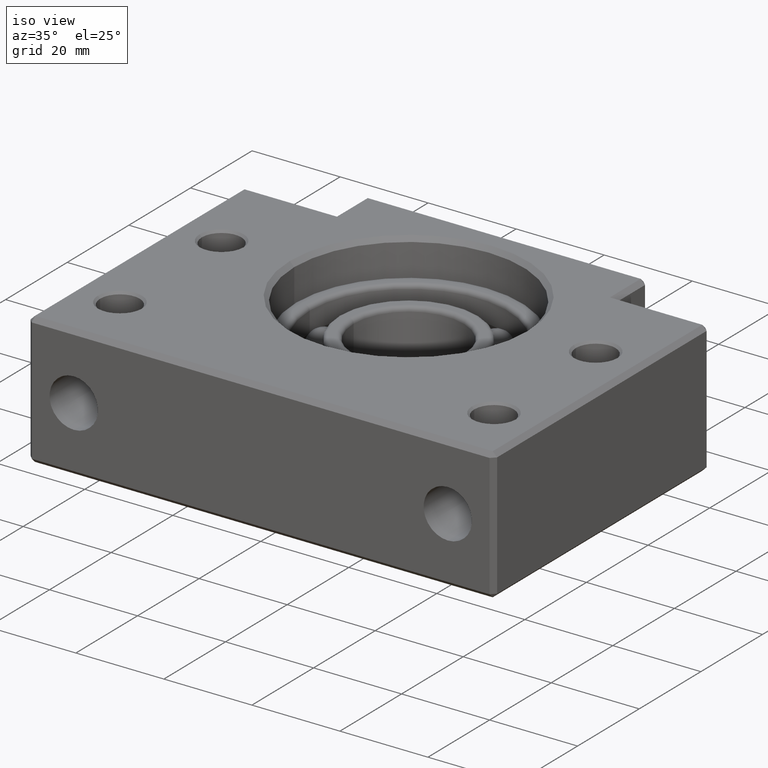
[diagram: clean part render]
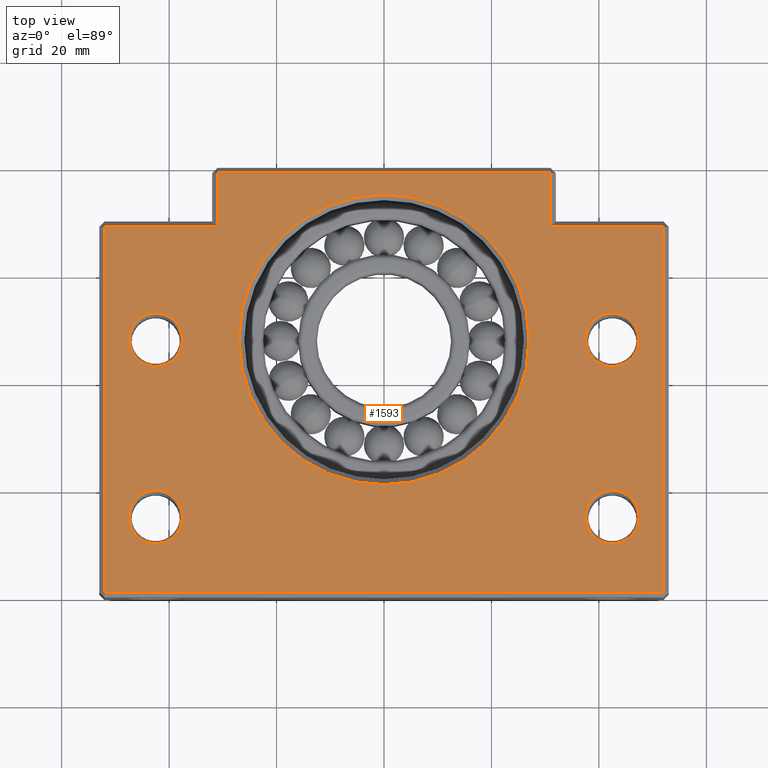
[diagram: tour spotlight — one face highlighted and labeled with its STEP entity id]
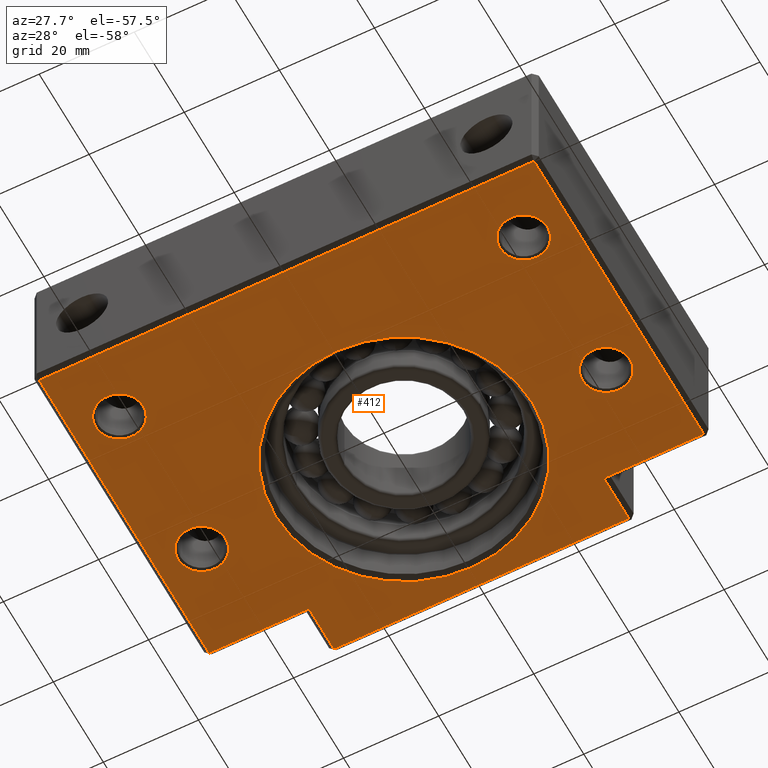
[diagram: tour spotlight — one face highlighted and labeled with its STEP entity id]
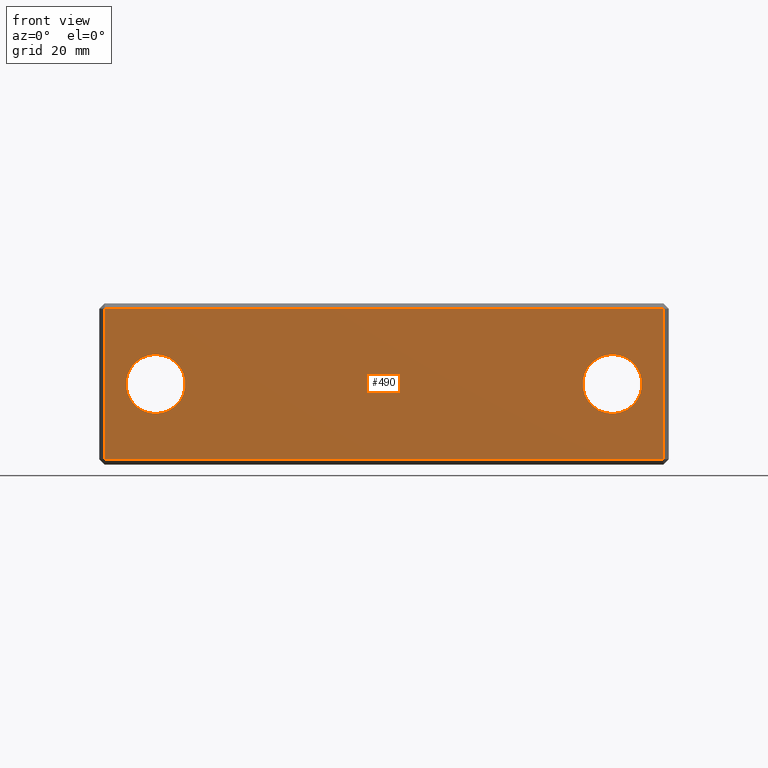
[diagram: tour spotlight — one face highlighted and labeled with its STEP entity id]
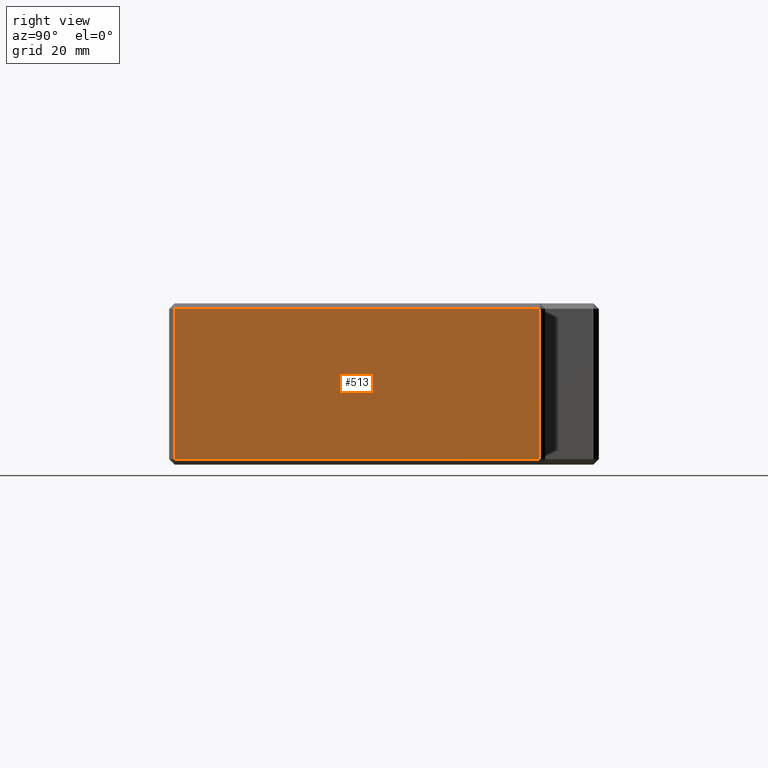
[diagram: tour spotlight — one face highlighted and labeled with its STEP entity id]
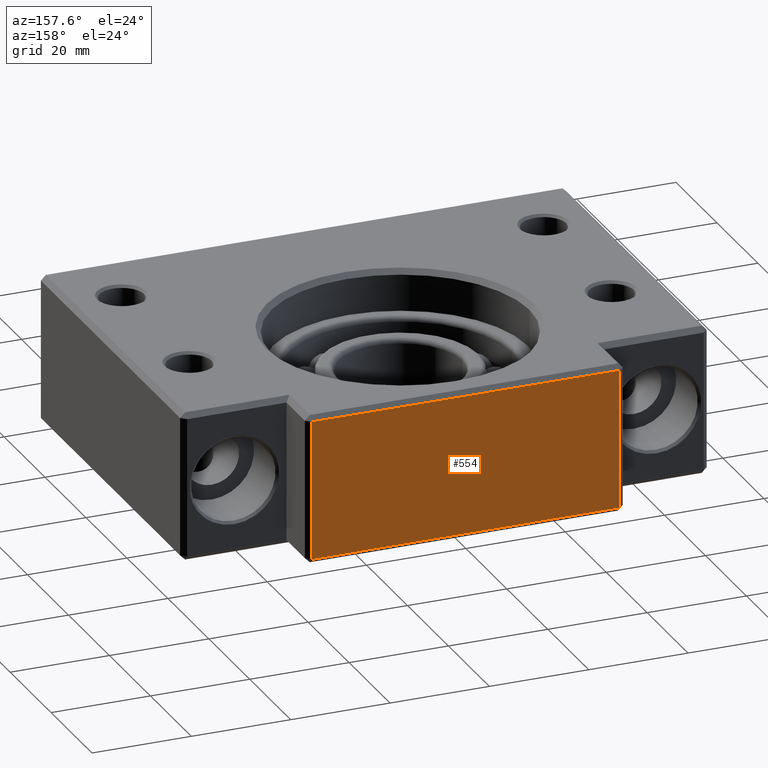
[diagram: tour spotlight — one face highlighted and labeled with its STEP entity id]
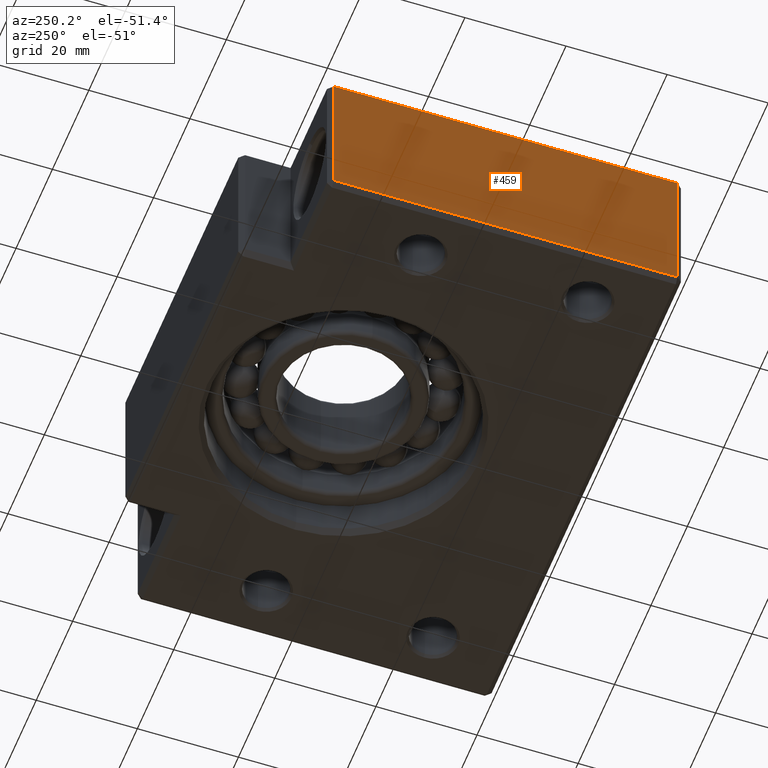
[diagram: tour spotlight — one face highlighted and labeled with its STEP entity id]
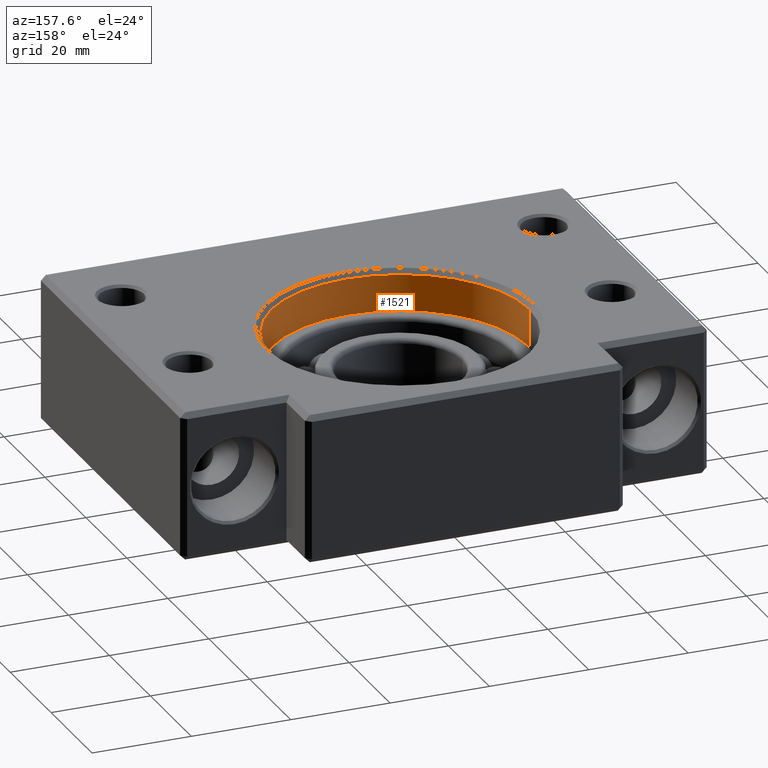
[diagram: tour spotlight — one face highlighted and labeled with its STEP entity id]
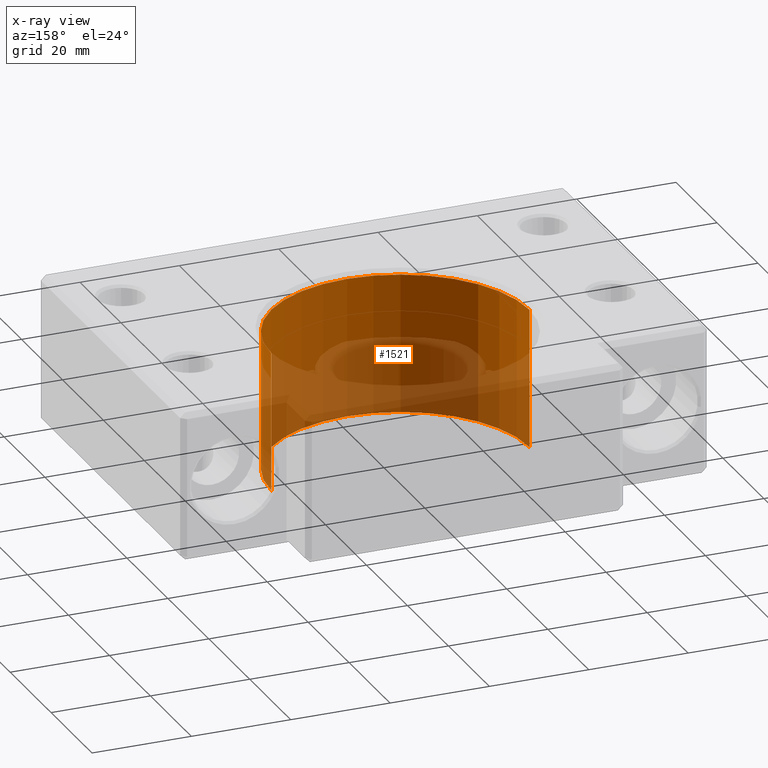
[diagram: x-ray of the same camera — body ghosted, this tour face saturated]
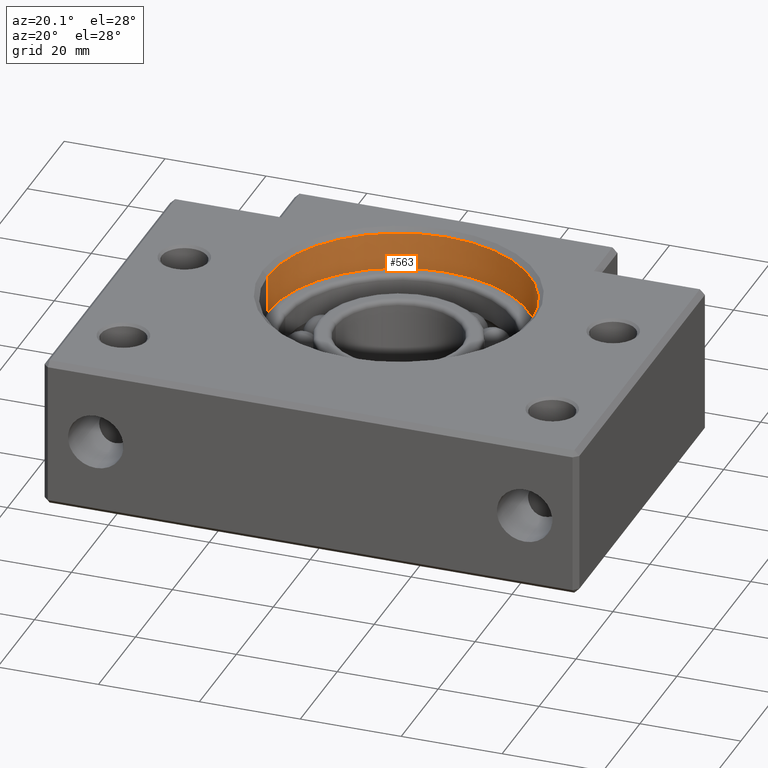
[diagram: tour spotlight — one face highlighted and labeled with its STEP entity id]
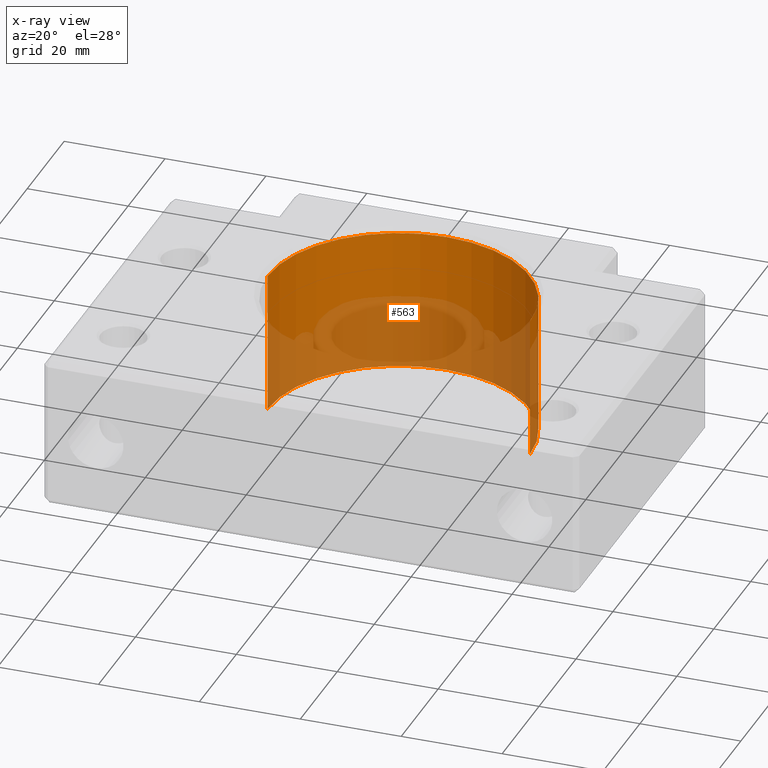
[diagram: x-ray of the same camera — body ghosted, this tour face saturated]
A machine part: a face-by-face anatomy tour. The part has 166 B-rep faces; the first image is the clean iso view, then the 8 largest visible faces are spotlighted one at a time (largest first), each with its STEP entity span.

Face 1 — top view, entity #1593. In plain terms, the highlighted planar face has unit normal (-0, 0, 1).
Definition (entity closure, byte-faithful):
#14 = VERTEX_POINT ( 'NONE', #1633 ) ;
#36 = DIRECTION ( 'NONE',  ( 0.0000000000000000000, -0.0000000000000000000, -1.000000000000000000 ) ) ;
#38 = CARTESIAN_POINT ( 'NONE',  ( -42.50000000000000000, 48.00000000000000000, 15.00000000000000000 ) ) ;
#42 = AXIS2_PLACEMENT_3D ( 'NONE', #38, #36, #44 ) ;
#44 = DIRECTION ( 'NONE',  ( 1.000000000000000000, 0.0000000000000000000, 0.0000000000000000000 ) ) ;
#46 = VERTEX_POINT ( 'NONE', #1685 ) ;
#52 = EDGE_CURVE ( 'NONE', #46, #60, #1749, .T. ) ;
#60 = VERTEX_POINT ( 'NONE', #1784 ) ;
#73 = ORIENTED_EDGE ( 'NONE', *, *, #74, .T. ) ;
#74 = EDGE_CURVE ( 'NONE', #14, #278, #1818, .T. ) ;
#173 = VERTEX_POINT ( 'NONE', #1971 ) ;
#191 = EDGE_CURVE ( 'NONE', #200, #204, #2011, .T. ) ;
#200 = VERTEX_POINT ( 'NONE', #1998 ) ;
#204 = VERTEX_POINT ( 'NONE', #1997 ) ;
#220 = VERTEX_POINT ( 'NONE', #2021 ) ;
#222 = EDGE_CURVE ( 'NONE', #173, #220, #2020, .T. ) ;
#259 = EDGE_CURVE ( 'NONE', #316, #310, #2138, .T. ) ;
#270 = VERTEX_POINT ( 'NONE', #2130 ) ;
#276 = ORIENTED_EDGE ( 'NONE', *, *, #259, .T. ) ;
#277 = VERTEX_POINT ( 'NONE', #2119 ) ;
#278 = VERTEX_POINT ( 'NONE', #2118 ) ;
#282 = EDGE_CURVE ( 'NONE', #270, #277, #1855, .T. ) ;
#310 = VERTEX_POINT ( 'NONE', #2183 ) ;
#311 = EDGE_CURVE ( 'NONE', #310, #316, #2182, .T. ) ;
#316 = VERTEX_POINT ( 'NONE', #2172 ) ;
#399 = ORIENTED_EDGE ( 'NONE', *, *, #403, .T. ) ;
#401 = ORIENTED_EDGE ( 'NONE', *, *, #406, .T. ) ;
#403 = EDGE_CURVE ( 'NONE', #413, #663, #2334, .T. ) ;
#404 = ORIENTED_EDGE ( 'NONE', *, *, #408, .T. ) ;
#406 = EDGE_CURVE ( 'NONE', #1589, #411, #2330, .T. ) ;
#408 = EDGE_CURVE ( 'NONE', #411, #413, #2326, .T. ) ;
#411 = VERTEX_POINT ( 'NONE', #2385 ) ;
#413 = VERTEX_POINT ( 'NONE', #2377 ) ;
#415 = EDGE_CURVE ( 'NONE', #278, #418, #2367, .T. ) ;
#416 = EDGE_CURVE ( 'NONE', #418, #1588, #2363, .T. ) ;
#418 = VERTEX_POINT ( 'NONE', #2423 ) ;
#419 = ORIENTED_EDGE ( 'NONE', *, *, #415, .T. ) ;
#420 = ORIENTED_EDGE ( 'NONE', *, *, #416, .T. ) ;
#663 = VERTEX_POINT ( 'NONE', #2814 ) ;
#664 = ORIENTED_EDGE ( 'NONE', *, *, #720, .T. ) ;
#720 = EDGE_CURVE ( 'NONE', #663, #14, #2883, .T. ) ;
#1357 = EDGE_LOOP ( 'NONE', ( #1359, #1583 ) ) ;
#1359 = ORIENTED_EDGE ( 'NONE', *, *, #52, .T. ) ;
#1360 = EDGE_CURVE ( 'NONE', #277, #270, #4022, .T. ) ;
#1370 = ORIENTED_EDGE ( 'NONE', *, *, #1360, .T. ) ;
#1373 = EDGE_LOOP ( 'NONE', ( #1374, #1370 ) ) ;
#1374 = ORIENTED_EDGE ( 'NONE', *, *, #282, .T. ) ;
#1583 = ORIENTED_EDGE ( 'NONE', *, *, #1584, .T. ) ;
#1584 = EDGE_CURVE ( 'NONE', #60, #46, #4763, .T. ) ;
#1585 = EDGE_LOOP ( 'NONE', ( #1586, #401, #404, #399, #664, #73, #419, #420 ) ) ;
#1586 = ORIENTED_EDGE ( 'NONE', *, *, #1587, .T. ) ;
#1587 = EDGE_CURVE ( 'NONE', #1588, #1589, #4828, .T. ) ;
#1588 = VERTEX_POINT ( 'NONE', #4824 ) ;
#1589 = VERTEX_POINT ( 'NONE', #4823 ) ;
#1593 = ADVANCED_FACE ( 'NONE', ( #4822, #4821, #4797, #4796, #4795, #4794 ), #4793, .T. ) ;
#1594 = EDGE_LOOP ( 'NONE', ( #1595, #1596 ) ) ;
#1595 = ORIENTED_EDGE ( 'NONE', *, *, #191, .T. ) ;
#1596 = ORIENTED_EDGE ( 'NONE', *, *, #1597, .T. ) ;
#1597 = EDGE_CURVE ( 'NONE', #204, #200, #4857, .T. ) ;
#1598 = EDGE_LOOP ( 'NONE', ( #1599, #1600 ) ) ;
#1599 = ORIENTED_EDGE ( 'NONE', *, *, #222, .T. ) ;
#1600 = ORIENTED_EDGE ( 'NONE', *, *, #1601, .T. ) ;
#1601 = EDGE_CURVE ( 'NONE', #220, #173, #4852, .T. ) ;
#1602 = EDGE_LOOP ( 'NONE', ( #1603, #276 ) ) ;
#1603 = ORIENTED_EDGE ( 'NONE', *, *, #311, .T. ) ;
#1633 = CARTESIAN_POINT ( 'NONE',  ( 52.00000000000000000, 1.000000000000041500, 15.00000000000000000 ) ) ;
#1685 = CARTESIAN_POINT ( 'NONE',  ( 27.00000000000000400, 48.00000000000000000, 15.00000000000000000 ) ) ;
#1741 = DIRECTION ( 'NONE',  ( 1.000000000000000000, 0.0000000000000000000, 0.0000000000000000000 ) ) ;
#1742 = DIRECTION ( 'NONE',  ( 0.0000000000000000000, -0.0000000000000000000, -1.000000000000000000 ) ) ;
#1743 = CARTESIAN_POINT ( 'NONE',  ( 1.124572892961660300E-014, 48.00000000000000000, 15.00000000000000000 ) ) ;
#1744 = AXIS2_PLACEMENT_3D ( 'NONE', #1743, #1742, #1741 ) ;
#1749 = CIRCLE ( 'NONE', #1744, 26.99999999999999300 ) ;
#1784 = CARTESIAN_POINT ( 'NONE',  ( -26.99999999999998200, 48.00000000000000000, 15.00000000000000000 ) ) ;
#1815 = DIRECTION ( 'NONE',  ( 9.912705577010326800E-017, 1.000000000000000000, 0.0000000000000000000 ) ) ;
#1816 = VECTOR ( 'NONE', #1815, 1000.000000000000000 ) ;
#1817 = CARTESIAN_POINT ( 'NONE',  ( 52.00000000000000700, 70.00000000000001400, 15.00000000000000000 ) ) ;
#1818 = LINE ( 'NONE', #1817, #1816 ) ;
#1855 = CIRCLE ( 'NONE', #42, 4.999999999999990200 ) ;
#1971 = CARTESIAN_POINT ( 'NONE',  ( 47.49999999999999300, 48.00000000000001400, 15.00000000000000000 ) ) ;
#1997 = CARTESIAN_POINT ( 'NONE',  ( 37.50000000000002800, 15.00000000000001100, 15.00000000000000000 ) ) ;
#1998 = CARTESIAN_POINT ( 'NONE',  ( 47.50000000000000700, 15.00000000000001100, 15.00000000000000000 ) ) ;
#2007 = DIRECTION ( 'NONE',  ( 1.000000000000000000, 0.0000000000000000000, 0.0000000000000000000 ) ) ;
#2008 = DIRECTION ( 'NONE',  ( 0.0000000000000000000, -0.0000000000000000000, -1.000000000000000000 ) ) ;
#2009 = CARTESIAN_POINT ( 'NONE',  ( 42.50000000000001400, 15.00000000000001100, 15.00000000000000000 ) ) ;
#2010 = AXIS2_PLACEMENT_3D ( 'NONE', #2009, #2008, #2007 ) ;
#2011 = CIRCLE ( 'NONE', #2010, 4.999999999999990200 ) ;
#2016 = DIRECTION ( 'NONE',  ( 1.000000000000000000, 0.0000000000000000000, 0.0000000000000000000 ) ) ;
#2017 = DIRECTION ( 'NONE',  ( 0.0000000000000000000, -0.0000000000000000000, -1.000000000000000000 ) ) ;
#2018 = CARTESIAN_POINT ( 'NONE',  ( 42.50000000000000000, 48.00000000000001400, 15.00000000000000000 ) ) ;
#2019 = AXIS2_PLACEMENT_3D ( 'NONE', #2018, #2017, #2016 ) ;
#2020 = CIRCLE ( 'NONE', #2019, 4.999999999999990200 ) ;
#2021 = CARTESIAN_POINT ( 'NONE',  ( 37.50000000000001400, 48.00000000000001400, 15.00000000000000000 ) ) ;
#2079 = CARTESIAN_POINT ( 'NONE',  ( -42.50000000000000000, 15.00000000000000000, 15.00000000000000000 ) ) ;
#2118 = CARTESIAN_POINT ( 'NONE',  ( 52.00000000000000700, 68.99999999999998600, 15.00000000000000000 ) ) ;
#2119 = CARTESIAN_POINT ( 'NONE',  ( -47.49999999999999300, 48.00000000000000000, 15.00000000000000000 ) ) ;
#2130 = CARTESIAN_POINT ( 'NONE',  ( -37.50000000000001400, 48.00000000000000000, 15.00000000000000000 ) ) ;
#2135 = DIRECTION ( 'NONE',  ( 1.000000000000000000, 0.0000000000000000000, 0.0000000000000000000 ) ) ;
#2136 = DIRECTION ( 'NONE',  ( 0.0000000000000000000, -0.0000000000000000000, -1.000000000000000000 ) ) ;
#2137 = AXIS2_PLACEMENT_3D ( 'NONE', #2079, #2136, #2135 ) ;
#2138 = CIRCLE ( 'NONE', #2137, 4.999999999999990200 ) ;
#2172 = CARTESIAN_POINT ( 'NONE',  ( -47.49999999999999300, 15.00000000000000000, 15.00000000000000000 ) ) ;
#2178 = DIRECTION ( 'NONE',  ( 1.000000000000000000, 0.0000000000000000000, 0.0000000000000000000 ) ) ;
#2179 = DIRECTION ( 'NONE',  ( 0.0000000000000000000, -0.0000000000000000000, -1.000000000000000000 ) ) ;
#2180 = CARTESIAN_POINT ( 'NONE',  ( -42.50000000000000000, 15.00000000000000000, 15.00000000000000000 ) ) ;
#2181 = AXIS2_PLACEMENT_3D ( 'NONE', #2180, #2179, #2178 ) ;
#2182 = CIRCLE ( 'NONE', #2181, 4.999999999999990200 ) ;
#2183 = CARTESIAN_POINT ( 'NONE',  ( -37.50000000000001400, 15.00000000000000000, 15.00000000000000000 ) ) ;
#2325 = CARTESIAN_POINT ( 'NONE',  ( -53.00000000000000700, 68.99999999999997200, 15.00000000000000000 ) ) ;
#2326 = LINE ( 'NONE', #2325, #2392 ) ;
#2327 = DIRECTION ( 'NONE',  ( 0.0000000000000000000, -1.000000000000000000, 0.0000000000000000000 ) ) ;
#2328 = VECTOR ( 'NONE', #2327, 1000.000000000000000 ) ;
#2329 = CARTESIAN_POINT ( 'NONE',  ( -30.99999999999996400, 70.00000000000000000, 15.00000000000000000 ) ) ;
#2330 = LINE ( 'NONE', #2329, #2328 ) ;
#2331 = DIRECTION ( 'NONE',  ( 2.973811673103097700E-016, -1.000000000000000000, 0.0000000000000000000 ) ) ;
#2332 = VECTOR ( 'NONE', #2331, 1000.000000000000000 ) ;
#2333 = CARTESIAN_POINT ( 'NONE',  ( -51.99999999999995700, 2.973811673103182500E-016, 15.00000000000000000 ) ) ;
#2334 = LINE ( 'NONE', #2333, #2332 ) ;
#2359 = DIRECTION ( 'NONE',  ( 0.0000000000000000000, 1.000000000000000000, 0.0000000000000000000 ) ) ;
#2360 = VECTOR ( 'NONE', #2359, 1000.000000000000000 ) ;
#2361 = CARTESIAN_POINT ( 'NONE',  ( 30.99999999999997900, 80.00000000000000000, 15.00000000000000000 ) ) ;
#2363 = LINE ( 'NONE', #2361, #2360 ) ;
#2364 = DIRECTION ( 'NONE',  ( -1.000000000000000000, 0.0000000000000000000, -0.0000000000000000000 ) ) ;
#2365 = VECTOR ( 'NONE', #2364, 1000.000000000000000 ) ;
#2366 = CARTESIAN_POINT ( 'NONE',  ( 32.00000000000000700, 68.99999999999998600, 15.00000000000000000 ) ) ;
#2367 = LINE ( 'NONE', #2366, #2365 ) ;
#2377 = CARTESIAN_POINT ( 'NONE',  ( -51.99999999999997900, 68.99999999999997200, 15.00000000000000000 ) ) ;
#2385 = CARTESIAN_POINT ( 'NONE',  ( -30.99999999999996400, 68.99999999999997200, 15.00000000000000000 ) ) ;
#2391 = DIRECTION ( 'NONE',  ( -1.000000000000000000, 0.0000000000000000000, -0.0000000000000000000 ) ) ;
#2392 = VECTOR ( 'NONE', #2391, 1000.000000000000000 ) ;
#2423 = CARTESIAN_POINT ( 'NONE',  ( 30.99999999999997900, 68.99999999999998600, 15.00000000000000000 ) ) ;
#2814 = CARTESIAN_POINT ( 'NONE',  ( -51.99999999999995700, 1.000000000000028900, 15.00000000000000000 ) ) ;
#2880 = DIRECTION ( 'NONE',  ( 1.000000000000000000, 1.224646799147353200E-016, 0.0000000000000000000 ) ) ;
#2881 = VECTOR ( 'NONE', #2880, 1000.000000000000000 ) ;
#2882 = CARTESIAN_POINT ( 'NONE',  ( 53.00000000000001400, 1.000000000000041700, 15.00000000000000000 ) ) ;
#2883 = LINE ( 'NONE', #2882, #2881 ) ;
#4014 = DIRECTION ( 'NONE',  ( 1.000000000000000000, 0.0000000000000000000, 0.0000000000000000000 ) ) ;
#4015 = DIRECTION ( 'NONE',  ( 0.0000000000000000000, -0.0000000000000000000, -1.000000000000000000 ) ) ;
#4016 = CARTESIAN_POINT ( 'NONE',  ( -42.50000000000000000, 48.00000000000000000, 15.00000000000000000 ) ) ;
#4017 = AXIS2_PLACEMENT_3D ( 'NONE', #4016, #4015, #4014 ) ;
#4022 = CIRCLE ( 'NONE', #4017, 4.999999999999990200 ) ;
#4756 = DIRECTION ( 'NONE',  ( 1.000000000000000000, 0.0000000000000000000, 0.0000000000000000000 ) ) ;
#4757 = DIRECTION ( 'NONE',  ( 0.0000000000000000000, -0.0000000000000000000, -1.000000000000000000 ) ) ;
#4758 = CARTESIAN_POINT ( 'NONE',  ( 1.124572892961660300E-014, 48.00000000000000000, 15.00000000000000000 ) ) ;
#4759 = AXIS2_PLACEMENT_3D ( 'NONE', #4758, #4757, #4756 ) ;
#4763 = CIRCLE ( 'NONE', #4759, 26.99999999999999300 ) ;
#4793 = PLANE ( 'NONE',  #4818 ) ;
#4794 = FACE_OUTER_BOUND ( 'NONE', #1585, .T. ) ;
#4795 = FACE_BOUND ( 'NONE', #1357, .T. ) ;
#4796 = FACE_BOUND ( 'NONE', #1373, .T. ) ;
#4797 = FACE_BOUND ( 'NONE', #1602, .T. ) ;
#4815 = DIRECTION ( 'NONE',  ( 1.000000000000000000, 0.0000000000000000000, 0.0000000000000000000 ) ) ;
#4816 = DIRECTION ( 'NONE',  ( -0.0000000000000000000, 0.0000000000000000000, 1.000000000000000000 ) ) ;
#4817 = CARTESIAN_POINT ( 'NONE',  ( -52.99999999999998600, 0.0000000000000000000, 15.00000000000000000 ) ) ;
#4818 = AXIS2_PLACEMENT_3D ( 'NONE', #4817, #4816, #4815 ) ;
#4821 = FACE_BOUND ( 'NONE', #1598, .T. ) ;
#4822 = FACE_BOUND ( 'NONE', #1594, .T. ) ;
#4823 = CARTESIAN_POINT ( 'NONE',  ( -30.99999999999996400, 78.99999999999994300, 15.00000000000000000 ) ) ;
#4824 = CARTESIAN_POINT ( 'NONE',  ( 30.99999999999997900, 78.99999999999995700, 15.00000000000000000 ) ) ;
#4825 = DIRECTION ( 'NONE',  ( -1.000000000000000000, -2.168404344971009100E-016, 0.0000000000000000000 ) ) ;
#4826 = VECTOR ( 'NONE', #4825, 1000.000000000000000 ) ;
#4827 = CARTESIAN_POINT ( 'NONE',  ( -31.99999999999999300, 78.99999999999994300, 15.00000000000000000 ) ) ;
#4828 = LINE ( 'NONE', #4827, #4826 ) ;
#4849 = DIRECTION ( 'NONE',  ( 1.000000000000000000, 0.0000000000000000000, 0.0000000000000000000 ) ) ;
#4850 = DIRECTION ( 'NONE',  ( 0.0000000000000000000, -0.0000000000000000000, -1.000000000000000000 ) ) ;
#4851 = AXIS2_PLACEMENT_3D ( 'NONE', #4858, #4850, #4849 ) ;
#4852 = CIRCLE ( 'NONE', #4851, 4.999999999999990200 ) ;
#4853 = DIRECTION ( 'NONE',  ( 1.000000000000000000, 0.0000000000000000000, 0.0000000000000000000 ) ) ;
#4854 = DIRECTION ( 'NONE',  ( 0.0000000000000000000, -0.0000000000000000000, -1.000000000000000000 ) ) ;
#4855 = CARTESIAN_POINT ( 'NONE',  ( 42.50000000000001400, 15.00000000000001100, 15.00000000000000000 ) ) ;
#4856 = AXIS2_PLACEMENT_3D ( 'NONE', #4855, #4854, #4853 ) ;
#4857 = CIRCLE ( 'NONE', #4856, 4.999999999999990200 ) ;
#4858 = CARTESIAN_POINT ( 'NONE',  ( 42.50000000000000000, 48.00000000000001400, 15.00000000000000000 ) ) ;

Face 2 — auxiliary view, entity #412. In plain terms, the highlighted planar face has unit normal (-0, 0, 1).
Definition (entity closure, byte-faithful):
#1 = VERTEX_POINT ( 'NONE', #40 ) ;
#28 = VERTEX_POINT ( 'NONE', #1657 ) ;
#31 = EDGE_CURVE ( 'NONE', #71, #28, #1659, .T. ) ;
#40 = CARTESIAN_POINT ( 'NONE',  ( 37.50000000000001400, 15.00000000000001100, -15.00000000000000000 ) ) ;
#71 = VERTEX_POINT ( 'NONE', #1756 ) ;
#333 = VERTEX_POINT ( 'NONE', #2205 ) ;
#334 = EDGE_CURVE ( 'NONE', #333, #342, #2204, .T. ) ;
#339 = VERTEX_POINT ( 'NONE', #2255 ) ;
#342 = VERTEX_POINT ( 'NONE', #2250 ) ;
#347 = EDGE_CURVE ( 'NONE', #350, #339, #2239, .T. ) ;
#350 = VERTEX_POINT ( 'NONE', #2234 ) ;
#400 = ORIENTED_EDGE ( 'NONE', *, *, #5042, .T. ) ;
#402 = EDGE_LOOP ( 'NONE', ( #405, #429 ) ) ;
#405 = ORIENTED_EDGE ( 'NONE', *, *, #4638, .T. ) ;
#407 = EDGE_LOOP ( 'NONE', ( #400, #409 ) ) ;
#409 = ORIENTED_EDGE ( 'NONE', *, *, #410, .T. ) ;
#410 = EDGE_CURVE ( 'NONE', #4613, #5046, #2390, .T. ) ;
#412 = ADVANCED_FACE ( 'NONE', ( #2384, #2383, #2382, #2381, #2380, #2379 ), #2378, .F. ) ;
#414 = EDGE_CURVE ( 'NONE', #28, #71, #2372, .T. ) ;
#417 = EDGE_LOOP ( 'NONE', ( #451, #447, #443, #436, #433, #476, #460, #457 ) ) ;
#421 = EDGE_LOOP ( 'NONE', ( #426, #422 ) ) ;
#422 = ORIENTED_EDGE ( 'NONE', *, *, #414, .T. ) ;
#423 = EDGE_CURVE ( 'NONE', #342, #333, #2422, .T. ) ;
#424 = EDGE_CURVE ( 'NONE', #339, #350, #2417, .T. ) ;
#425 = ORIENTED_EDGE ( 'NONE', *, *, #424, .T. ) ;
#426 = ORIENTED_EDGE ( 'NONE', *, *, #31, .T. ) ;
#427 = ORIENTED_EDGE ( 'NONE', *, *, #347, .T. ) ;
#428 = EDGE_LOOP ( 'NONE', ( #427, #425 ) ) ;
#429 = ORIENTED_EDGE ( 'NONE', *, *, #430, .T. ) ;
#430 = EDGE_CURVE ( 'NONE', #4721, #1, #2412, .T. ) ;
#431 = EDGE_LOOP ( 'NONE', ( #434, #432 ) ) ;
#432 = ORIENTED_EDGE ( 'NONE', *, *, #423, .T. ) ;
#433 = ORIENTED_EDGE ( 'NONE', *, *, #435, .T. ) ;
#434 = ORIENTED_EDGE ( 'NONE', *, *, #334, .T. ) ;
#435 = EDGE_CURVE ( 'NONE', #437, #477, #2407, .T. ) ;
#436 = ORIENTED_EDGE ( 'NONE', *, *, #438, .T. ) ;
#437 = VERTEX_POINT ( 'NONE', #2403 ) ;
#438 = EDGE_CURVE ( 'NONE', #439, #437, #2402, .T. ) ;
#439 = VERTEX_POINT ( 'NONE', #2398 ) ;
#440 = EDGE_CURVE ( 'NONE', #442, #439, #2397, .T. ) ;
#442 = VERTEX_POINT ( 'NONE', #2393 ) ;
#443 = ORIENTED_EDGE ( 'NONE', *, *, #440, .T. ) ;
#444 = VERTEX_POINT ( 'NONE', #2454 ) ;
#445 = VERTEX_POINT ( 'NONE', #2453 ) ;
#446 = EDGE_CURVE ( 'NONE', #445, #444, #2452, .T. ) ;
#447 = ORIENTED_EDGE ( 'NONE', *, *, #448, .T. ) ;
#448 = EDGE_CURVE ( 'NONE', #444, #442, #2448, .T. ) ;
#451 = ORIENTED_EDGE ( 'NONE', *, *, #446, .T. ) ;
#455 = EDGE_CURVE ( 'NONE', #462, #445, #2441, .T. ) ;
#457 = ORIENTED_EDGE ( 'NONE', *, *, #455, .T. ) ;
#458 = VERTEX_POINT ( 'NONE', #2437 ) ;
#460 = ORIENTED_EDGE ( 'NONE', *, *, #461, .T. ) ;
#461 = EDGE_CURVE ( 'NONE', #458, #462, #2430, .T. ) ;
#462 = VERTEX_POINT ( 'NONE', #2425 ) ;
#471 = EDGE_CURVE ( 'NONE', #477, #458, #2480, .T. ) ;
#476 = ORIENTED_EDGE ( 'NONE', *, *, #471, .T. ) ;
#477 = VERTEX_POINT ( 'NONE', #2474 ) ;
#1657 = CARTESIAN_POINT ( 'NONE',  ( 27.00000000000002100, 48.00000000000000000, -15.00000000000000000 ) ) ;
#1659 = CIRCLE ( 'NONE', #1697, 27.00000000000001100 ) ;
#1694 = DIRECTION ( 'NONE',  ( 1.000000000000000000, 0.0000000000000000000, 0.0000000000000000000 ) ) ;
#1695 = DIRECTION ( 'NONE',  ( -0.0000000000000000000, 0.0000000000000000000, 1.000000000000000000 ) ) ;
#1696 = CARTESIAN_POINT ( 'NONE',  ( 1.124572892961660300E-014, 48.00000000000000000, -15.00000000000000000 ) ) ;
#1697 = AXIS2_PLACEMENT_3D ( 'NONE', #1696, #1695, #1694 ) ;
#1756 = CARTESIAN_POINT ( 'NONE',  ( -27.00000000000000000, 48.00000000000000000, -15.00000000000000000 ) ) ;
#2200 = DIRECTION ( 'NONE',  ( 1.000000000000000000, 0.0000000000000000000, 0.0000000000000000000 ) ) ;
#2201 = DIRECTION ( 'NONE',  ( -0.0000000000000000000, 0.0000000000000000000, 1.000000000000000000 ) ) ;
#2202 = CARTESIAN_POINT ( 'NONE',  ( -42.50000000000000000, 15.00000000000000000, -15.00000000000000000 ) ) ;
#2203 = AXIS2_PLACEMENT_3D ( 'NONE', #2202, #2201, #2200 ) ;
#2204 = CIRCLE ( 'NONE', #2203, 5.000000000000004400 ) ;
#2205 = CARTESIAN_POINT ( 'NONE',  ( -47.50000000000000700, 15.00000000000000000, -15.00000000000000000 ) ) ;
#2234 = CARTESIAN_POINT ( 'NONE',  ( -47.50000000000000700, 48.00000000000000000, -15.00000000000000000 ) ) ;
#2235 = DIRECTION ( 'NONE',  ( 1.000000000000000000, 0.0000000000000000000, 0.0000000000000000000 ) ) ;
#2236 = DIRECTION ( 'NONE',  ( -0.0000000000000000000, 0.0000000000000000000, 1.000000000000000000 ) ) ;
#2237 = CARTESIAN_POINT ( 'NONE',  ( -42.50000000000000000, 48.00000000000000000, -15.00000000000000000 ) ) ;
#2238 = AXIS2_PLACEMENT_3D ( 'NONE', #2237, #2236, #2235 ) ;
#2239 = CIRCLE ( 'NONE', #2238, 5.000000000000004400 ) ;
#2250 = CARTESIAN_POINT ( 'NONE',  ( -37.50000000000000000, 15.00000000000000000, -15.00000000000000000 ) ) ;
#2255 = CARTESIAN_POINT ( 'NONE',  ( -37.50000000000000000, 48.00000000000000000, -15.00000000000000000 ) ) ;
#2368 = DIRECTION ( 'NONE',  ( 1.000000000000000000, 0.0000000000000000000, 0.0000000000000000000 ) ) ;
#2369 = DIRECTION ( 'NONE',  ( -0.0000000000000000000, 0.0000000000000000000, 1.000000000000000000 ) ) ;
#2370 = CARTESIAN_POINT ( 'NONE',  ( 1.124572892961660300E-014, 48.00000000000000000, -15.00000000000000000 ) ) ;
#2371 = AXIS2_PLACEMENT_3D ( 'NONE', #2370, #2369, #2368 ) ;
#2372 = CIRCLE ( 'NONE', #2371, 27.00000000000001100 ) ;
#2373 = DIRECTION ( 'NONE',  ( 1.000000000000000000, 0.0000000000000000000, 0.0000000000000000000 ) ) ;
#2374 = DIRECTION ( 'NONE',  ( -0.0000000000000000000, 0.0000000000000000000, 1.000000000000000000 ) ) ;
#2375 = CARTESIAN_POINT ( 'NONE',  ( -52.99999999999998600, 0.0000000000000000000, -15.00000000000000000 ) ) ;
#2376 = AXIS2_PLACEMENT_3D ( 'NONE', #2375, #2374, #2373 ) ;
#2378 = PLANE ( 'NONE',  #2376 ) ;
#2379 = FACE_OUTER_BOUND ( 'NONE', #417, .T. ) ;
#2380 = FACE_BOUND ( 'NONE', #421, .T. ) ;
#2381 = FACE_BOUND ( 'NONE', #428, .T. ) ;
#2382 = FACE_BOUND ( 'NONE', #431, .T. ) ;
#2383 = FACE_BOUND ( 'NONE', #402, .T. ) ;
#2384 = FACE_BOUND ( 'NONE', #407, .T. ) ;
#2386 = DIRECTION ( 'NONE',  ( 1.000000000000000000, 0.0000000000000000000, 0.0000000000000000000 ) ) ;
#2387 = DIRECTION ( 'NONE',  ( -0.0000000000000000000, 0.0000000000000000000, 1.000000000000000000 ) ) ;
#2388 = CARTESIAN_POINT ( 'NONE',  ( 42.50000000000000000, 48.00000000000001400, -15.00000000000000000 ) ) ;
#2389 = AXIS2_PLACEMENT_3D ( 'NONE', #2388, #2387, #2386 ) ;
#2390 = CIRCLE ( 'NONE', #2389, 5.000000000000046200 ) ;
#2393 = CARTESIAN_POINT ( 'NONE',  ( -51.99999999999997900, 68.99999999999997200, -15.00000000000000000 ) ) ;
#2394 = DIRECTION ( 'NONE',  ( 1.000000000000000000, 0.0000000000000000000, 0.0000000000000000000 ) ) ;
#2395 = VECTOR ( 'NONE', #2394, 1000.000000000000000 ) ;
#2396 = CARTESIAN_POINT ( 'NONE',  ( -52.99999999999998600, 68.99999999999997200, -15.00000000000000000 ) ) ;
#2397 = LINE ( 'NONE', #2396, #2395 ) ;
#2398 = CARTESIAN_POINT ( 'NONE',  ( -30.99999999999996400, 68.99999999999997200, -15.00000000000000000 ) ) ;
#2399 = DIRECTION ( 'NONE',  ( 0.0000000000000000000, 1.000000000000000000, 0.0000000000000000000 ) ) ;
#2400 = VECTOR ( 'NONE', #2399, 1000.000000000000000 ) ;
#2401 = CARTESIAN_POINT ( 'NONE',  ( -30.99999999999996400, 0.0000000000000000000, -15.00000000000000000 ) ) ;
#2402 = LINE ( 'NONE', #2401, #2400 ) ;
#2403 = CARTESIAN_POINT ( 'NONE',  ( -30.99999999999996400, 78.99999999999994300, -15.00000000000000000 ) ) ;
#2404 = DIRECTION ( 'NONE',  ( 1.000000000000000000, 2.168404344971009100E-016, 0.0000000000000000000 ) ) ;
#2405 = VECTOR ( 'NONE', #2404, 1000.000000000000000 ) ;
#2406 = CARTESIAN_POINT ( 'NONE',  ( -53.00000000000000000, 78.99999999999994300, -15.00000000000000000 ) ) ;
#2407 = LINE ( 'NONE', #2406, #2405 ) ;
#2408 = DIRECTION ( 'NONE',  ( 1.000000000000000000, 0.0000000000000000000, 0.0000000000000000000 ) ) ;
#2409 = DIRECTION ( 'NONE',  ( -0.0000000000000000000, 0.0000000000000000000, 1.000000000000000000 ) ) ;
#2410 = CARTESIAN_POINT ( 'NONE',  ( 42.50000000000001400, 15.00000000000001100, -15.00000000000000000 ) ) ;
#2411 = AXIS2_PLACEMENT_3D ( 'NONE', #2410, #2409, #2408 ) ;
#2412 = CIRCLE ( 'NONE', #2411, 5.000000000000004400 ) ;
#2413 = DIRECTION ( 'NONE',  ( 1.000000000000000000, 0.0000000000000000000, 0.0000000000000000000 ) ) ;
#2414 = DIRECTION ( 'NONE',  ( -0.0000000000000000000, 0.0000000000000000000, 1.000000000000000000 ) ) ;
#2415 = CARTESIAN_POINT ( 'NONE',  ( -42.50000000000000000, 48.00000000000000000, -15.00000000000000000 ) ) ;
#2416 = AXIS2_PLACEMENT_3D ( 'NONE', #2415, #2414, #2413 ) ;
#2417 = CIRCLE ( 'NONE', #2416, 5.000000000000004400 ) ;
#2418 = DIRECTION ( 'NONE',  ( 1.000000000000000000, 0.0000000000000000000, 0.0000000000000000000 ) ) ;
#2419 = DIRECTION ( 'NONE',  ( -0.0000000000000000000, 0.0000000000000000000, 1.000000000000000000 ) ) ;
#2420 = CARTESIAN_POINT ( 'NONE',  ( -42.50000000000000000, 15.00000000000000000, -15.00000000000000000 ) ) ;
#2421 = AXIS2_PLACEMENT_3D ( 'NONE', #2420, #2419, #2418 ) ;
#2422 = CIRCLE ( 'NONE', #2421, 5.000000000000004400 ) ;
#2425 = CARTESIAN_POINT ( 'NONE',  ( 52.00000000000000700, 68.99999999999998600, -15.00000000000000000 ) ) ;
#2427 = DIRECTION ( 'NONE',  ( 1.000000000000000000, 0.0000000000000000000, 0.0000000000000000000 ) ) ;
#2428 = VECTOR ( 'NONE', #2427, 1000.000000000000000 ) ;
#2429 = CARTESIAN_POINT ( 'NONE',  ( -52.99999999999998600, 68.99999999999998600, -15.00000000000000000 ) ) ;
#2430 = LINE ( 'NONE', #2429, #2428 ) ;
#2437 = CARTESIAN_POINT ( 'NONE',  ( 30.99999999999997900, 68.99999999999998600, -15.00000000000000000 ) ) ;
#2438 = DIRECTION ( 'NONE',  ( -9.912705577010326800E-017, -1.000000000000000000, 0.0000000000000000000 ) ) ;
#2439 = VECTOR ( 'NONE', #2438, 1000.000000000000000 ) ;
#2440 = CARTESIAN_POINT ( 'NONE',  ( 52.00000000000000000, -1.040834085586084100E-014, -15.00000000000000000 ) ) ;
#2441 = LINE ( 'NONE', #2440, #2439 ) ;
#2445 = DIRECTION ( 'NONE',  ( -2.973811673103097700E-016, 1.000000000000000000, 0.0000000000000000000 ) ) ;
#2446 = VECTOR ( 'NONE', #2445, 1000.000000000000000 ) ;
#2447 = CARTESIAN_POINT ( 'NONE',  ( -51.99999999999995700, 2.973811673103182500E-016, -15.00000000000000000 ) ) ;
#2448 = LINE ( 'NONE', #2447, #2446 ) ;
#2449 = DIRECTION ( 'NONE',  ( -1.000000000000000000, -1.224646799147353200E-016, 0.0000000000000000000 ) ) ;
#2450 = VECTOR ( 'NONE', #2449, 1000.000000000000000 ) ;
#2451 = CARTESIAN_POINT ( 'NONE',  ( -52.99999999999998600, 1.000000000000028600, -15.00000000000000000 ) ) ;
#2452 = LINE ( 'NONE', #2451, #2450 ) ;
#2453 = CARTESIAN_POINT ( 'NONE',  ( 52.00000000000000000, 1.000000000000041500, -15.00000000000000000 ) ) ;
#2454 = CARTESIAN_POINT ( 'NONE',  ( -51.99999999999995700, 1.000000000000028900, -15.00000000000000000 ) ) ;
#2474 = CARTESIAN_POINT ( 'NONE',  ( 30.99999999999997900, 78.99999999999995700, -15.00000000000000000 ) ) ;
#2477 = DIRECTION ( 'NONE',  ( 0.0000000000000000000, -1.000000000000000000, 0.0000000000000000000 ) ) ;
#2478 = VECTOR ( 'NONE', #2477, 1000.000000000000000 ) ;
#2479 = CARTESIAN_POINT ( 'NONE',  ( 30.99999999999997900, 0.0000000000000000000, -15.00000000000000000 ) ) ;
#2480 = LINE ( 'NONE', #2479, #2478 ) ;
#4613 = VERTEX_POINT ( 'NONE', #4900 ) ;
#4638 = EDGE_CURVE ( 'NONE', #1, #4721, #4899, .T. ) ;
#4721 = VERTEX_POINT ( 'NONE', #4894 ) ;
#4894 = CARTESIAN_POINT ( 'NONE',  ( 47.50000000000002100, 15.00000000000001100, -15.00000000000000000 ) ) ;
#4895 = DIRECTION ( 'NONE',  ( 1.000000000000000000, 0.0000000000000000000, 0.0000000000000000000 ) ) ;
#4896 = DIRECTION ( 'NONE',  ( -0.0000000000000000000, 0.0000000000000000000, 1.000000000000000000 ) ) ;
#4897 = CARTESIAN_POINT ( 'NONE',  ( 42.50000000000001400, 15.00000000000001100, -15.00000000000000000 ) ) ;
#4898 = AXIS2_PLACEMENT_3D ( 'NONE', #4897, #4896, #4895 ) ;
#4899 = CIRCLE ( 'NONE', #4898, 5.000000000000004400 ) ;
#4900 = CARTESIAN_POINT ( 'NONE',  ( 47.50000000000005000, 48.00000000000001400, -15.00000000000000000 ) ) ;
#4945 = CARTESIAN_POINT ( 'NONE',  ( 37.49999999999995700, 48.00000000000001400, -15.00000000000000000 ) ) ;
#4951 = DIRECTION ( 'NONE',  ( 1.000000000000000000, 0.0000000000000000000, 0.0000000000000000000 ) ) ;
#4952 = DIRECTION ( 'NONE',  ( -0.0000000000000000000, 0.0000000000000000000, 1.000000000000000000 ) ) ;
#4953 = CARTESIAN_POINT ( 'NONE',  ( 42.50000000000000000, 48.00000000000001400, -15.00000000000000000 ) ) ;
#4954 = AXIS2_PLACEMENT_3D ( 'NONE', #4953, #4952, #4951 ) ;
#4955 = CIRCLE ( 'NONE', #4954, 5.000000000000046200 ) ;
#5042 = EDGE_CURVE ( 'NONE', #5046, #4613, #4955, .T. ) ;
#5046 = VERTEX_POINT ( 'NONE', #4945 ) ;

Face 3 — front view, entity #490. In plain terms, the highlighted planar face has unit normal (-0, 1, 0).
Definition (entity closure, byte-faithful):
#17 = VERTEX_POINT ( 'NONE', #1680 ) ;
#20 = VERTEX_POINT ( 'NONE', #1679 ) ;
#21 = EDGE_CURVE ( 'NONE', #20, #17, #1678, .T. ) ;
#441 = EDGE_LOOP ( 'NONE', ( #474, #475, #493, #502 ) ) ;
#452 = ORIENTED_EDGE ( 'NONE', *, *, #1438, .T. ) ;
#453 = ORIENTED_EDGE ( 'NONE', *, *, #21, .T. ) ;
#472 = VERTEX_POINT ( 'NONE', #2476 ) ;
#473 = VERTEX_POINT ( 'NONE', #2475 ) ;
#474 = ORIENTED_EDGE ( 'NONE', *, *, #478, .T. ) ;
#475 = ORIENTED_EDGE ( 'NONE', *, *, #492, .T. ) ;
#478 = EDGE_CURVE ( 'NONE', #472, #473, #2473, .T. ) ;
#479 = EDGE_LOOP ( 'NONE', ( #482, #452 ) ) ;
#482 = ORIENTED_EDGE ( 'NONE', *, *, #485, .T. ) ;
#485 = EDGE_CURVE ( 'NONE', #1439, #1453, #2459, .T. ) ;
#490 = ADVANCED_FACE ( 'NONE', ( #2514, #2513, #2512 ), #2511, .F. ) ;
#491 = VERTEX_POINT ( 'NONE', #2506 ) ;
#492 = EDGE_CURVE ( 'NONE', #473, #491, #2505, .T. ) ;
#493 = ORIENTED_EDGE ( 'NONE', *, *, #497, .T. ) ;
#496 = ORIENTED_EDGE ( 'NONE', *, *, #500, .T. ) ;
#497 = EDGE_CURVE ( 'NONE', #491, #501, #2497, .T. ) ;
#498 = EDGE_LOOP ( 'NONE', ( #496, #453 ) ) ;
#500 = EDGE_CURVE ( 'NONE', #17, #20, #2493, .T. ) ;
#501 = VERTEX_POINT ( 'NONE', #2488 ) ;
#502 = ORIENTED_EDGE ( 'NONE', *, *, #503, .T. ) ;
#503 = EDGE_CURVE ( 'NONE', #501, #472, #2548, .T. ) ;
#1438 = EDGE_CURVE ( 'NONE', #1453, #1439, #4348, .T. ) ;
#1439 = VERTEX_POINT ( 'NONE', #4343 ) ;
#1453 = VERTEX_POINT ( 'NONE', #4353 ) ;
#1674 = DIRECTION ( 'NONE',  ( 0.0000000000000000000, 0.0000000000000000000, 1.000000000000000000 ) ) ;
#1675 = DIRECTION ( 'NONE',  ( -0.0000000000000000000, 1.000000000000000000, -0.0000000000000000000 ) ) ;
#1676 = CARTESIAN_POINT ( 'NONE',  ( -42.50000000000000000, 0.0000000000000000000, 0.0000000000000000000 ) ) ;
#1677 = AXIS2_PLACEMENT_3D ( 'NONE', #1676, #1675, #1674 ) ;
#1678 = CIRCLE ( 'NONE', #1677, 5.499999999999984000 ) ;
#1679 = CARTESIAN_POINT ( 'NONE',  ( -42.50000000000000000, 0.0000000000000000000, -5.499999999999984000 ) ) ;
#1680 = CARTESIAN_POINT ( 'NONE',  ( -42.50000000000000000, 0.0000000000000000000, 5.499999999999984000 ) ) ;
#2455 = DIRECTION ( 'NONE',  ( 0.0000000000000000000, 0.0000000000000000000, 1.000000000000000000 ) ) ;
#2456 = DIRECTION ( 'NONE',  ( -0.0000000000000000000, 1.000000000000000000, -0.0000000000000000000 ) ) ;
#2457 = CARTESIAN_POINT ( 'NONE',  ( 42.50000000000000000, 0.0000000000000000000, -1.040949779275250200E-014 ) ) ;
#2458 = AXIS2_PLACEMENT_3D ( 'NONE', #2457, #2456, #2455 ) ;
#2459 = CIRCLE ( 'NONE', #2458, 5.499999999999984000 ) ;
#2470 = DIRECTION ( 'NONE',  ( -1.000000000000000000, -1.224646799147353200E-016, -0.0000000000000000000 ) ) ;
#2471 = VECTOR ( 'NONE', #2470, 1000.000000000000000 ) ;
#2472 = CARTESIAN_POINT ( 'NONE',  ( -52.99999999999998600, 0.0000000000000000000, 13.99999999999997200 ) ) ;
#2473 = LINE ( 'NONE', #2472, #2471 ) ;
#2475 = CARTESIAN_POINT ( 'NONE',  ( -51.99999999999995700, 1.224646799147388200E-016, 13.99999999999997200 ) ) ;
#2476 = CARTESIAN_POINT ( 'NONE',  ( 51.99999999999998600, 1.285879139104720500E-014, 13.99999999999997200 ) ) ;
#2488 = CARTESIAN_POINT ( 'NONE',  ( 51.99999999999998600, 1.285879139104720500E-014, -13.99999999999997200 ) ) ;
#2489 = DIRECTION ( 'NONE',  ( 0.0000000000000000000, 0.0000000000000000000, 1.000000000000000000 ) ) ;
#2490 = DIRECTION ( 'NONE',  ( -0.0000000000000000000, 1.000000000000000000, -0.0000000000000000000 ) ) ;
#2491 = CARTESIAN_POINT ( 'NONE',  ( -42.50000000000000000, 0.0000000000000000000, 0.0000000000000000000 ) ) ;
#2492 = AXIS2_PLACEMENT_3D ( 'NONE', #2491, #2490, #2489 ) ;
#2493 = CIRCLE ( 'NONE', #2492, 5.499999999999984000 ) ;
#2494 = DIRECTION ( 'NONE',  ( 1.000000000000000000, 1.224646799147353200E-016, 0.0000000000000000000 ) ) ;
#2495 = VECTOR ( 'NONE', #2494, 1000.000000000000000 ) ;
#2496 = CARTESIAN_POINT ( 'NONE',  ( -52.99999999999998600, 0.0000000000000000000, -13.99999999999997200 ) ) ;
#2497 = LINE ( 'NONE', #2496, #2495 ) ;
#2502 = DIRECTION ( 'NONE',  ( 0.0000000000000000000, 0.0000000000000000000, -1.000000000000000000 ) ) ;
#2503 = VECTOR ( 'NONE', #2502, 1000.000000000000000 ) ;
#2504 = CARTESIAN_POINT ( 'NONE',  ( -51.99999999999995700, 1.224646799147388200E-016, 15.00000000000000000 ) ) ;
#2505 = LINE ( 'NONE', #2504, #2503 ) ;
#2506 = CARTESIAN_POINT ( 'NONE',  ( -51.99999999999995700, 1.224646799147388200E-016, -13.99999999999997200 ) ) ;
#2507 = DIRECTION ( 'NONE',  ( -1.000000000000000000, -1.224646799147353200E-016, 0.0000000000000000000 ) ) ;
#2508 = DIRECTION ( 'NONE',  ( -1.224646799147353200E-016, 1.000000000000000000, 0.0000000000000000000 ) ) ;
#2509 = AXIS2_PLACEMENT_3D ( 'NONE', #2510, #2508, #2507 ) ;
#2510 = CARTESIAN_POINT ( 'NONE',  ( -52.99999999999998600, 0.0000000000000000000, 15.00000000000000000 ) ) ;
#2511 = PLANE ( 'NONE',  #2509 ) ;
#2512 = FACE_BOUND ( 'NONE', #479, .T. ) ;
#2513 = FACE_BOUND ( 'NONE', #498, .T. ) ;
#2514 = FACE_OUTER_BOUND ( 'NONE', #441, .T. ) ;
#2545 = DIRECTION ( 'NONE',  ( 0.0000000000000000000, 0.0000000000000000000, 1.000000000000000000 ) ) ;
#2546 = VECTOR ( 'NONE', #2545, 1000.000000000000000 ) ;
#2547 = CARTESIAN_POINT ( 'NONE',  ( 51.99999999999998600, 1.285879139104720500E-014, 15.00000000000000000 ) ) ;
#2548 = LINE ( 'NONE', #2547, #2546 ) ;
#4343 = CARTESIAN_POINT ( 'NONE',  ( 42.50000000000000000, 0.0000000000000000000, 5.499999999999973400 ) ) ;
#4344 = DIRECTION ( 'NONE',  ( 0.0000000000000000000, 0.0000000000000000000, 1.000000000000000000 ) ) ;
#4345 = DIRECTION ( 'NONE',  ( -0.0000000000000000000, 1.000000000000000000, -0.0000000000000000000 ) ) ;
#4346 = CARTESIAN_POINT ( 'NONE',  ( 42.50000000000000000, 0.0000000000000000000, -1.040949779275250200E-014 ) ) ;
#4347 = AXIS2_PLACEMENT_3D ( 'NONE', #4346, #4345, #4344 ) ;
#4348 = CIRCLE ( 'NONE', #4347, 5.499999999999984000 ) ;
#4353 = CARTESIAN_POINT ( 'NONE',  ( 42.50000000000000000, 0.0000000000000000000, -5.499999999999994700 ) ) ;

Face 4 — right view, entity #513. In plain terms, the highlighted planar face has unit normal (-1, 0, 0).
Definition (entity closure, byte-faithful):
#454 = VERTEX_POINT ( 'NONE', #2442 ) ;
#494 = ORIENTED_EDGE ( 'NONE', *, *, #495, .T. ) ;
#495 = EDGE_CURVE ( 'NONE', #454, #509, #2501, .T. ) ;
#504 = ORIENTED_EDGE ( 'NONE', *, *, #510, .T. ) ;
#505 = VERTEX_POINT ( 'NONE', #2544 ) ;
#506 = EDGE_CURVE ( 'NONE', #508, #454, #2543, .T. ) ;
#507 = ORIENTED_EDGE ( 'NONE', *, *, #506, .T. ) ;
#508 = VERTEX_POINT ( 'NONE', #2539 ) ;
#509 = VERTEX_POINT ( 'NONE', #2538 ) ;
#510 = EDGE_CURVE ( 'NONE', #505, #508, #2537, .T. ) ;
#511 = EDGE_CURVE ( 'NONE', #509, #505, #2533, .T. ) ;
#512 = EDGE_LOOP ( 'NONE', ( #514, #504, #507, #494 ) ) ;
#513 = ADVANCED_FACE ( 'NONE', ( #2529 ), #2527, .F. ) ;
#514 = ORIENTED_EDGE ( 'NONE', *, *, #511, .T. ) ;
#2442 = CARTESIAN_POINT ( 'NONE',  ( 53.00000000000002100, 68.99999999999998600, -13.99999999999997200 ) ) ;
#2498 = DIRECTION ( 'NONE',  ( 0.0000000000000000000, 0.0000000000000000000, 1.000000000000000000 ) ) ;
#2499 = VECTOR ( 'NONE', #2498, 1000.000000000000000 ) ;
#2500 = CARTESIAN_POINT ( 'NONE',  ( 53.00000000000002100, 68.99999999999998600, 15.00000000000000000 ) ) ;
#2501 = LINE ( 'NONE', #2500, #2499 ) ;
#2523 = DIRECTION ( 'NONE',  ( -9.912705577010326800E-017, -1.000000000000000000, 0.0000000000000000000 ) ) ;
#2524 = DIRECTION ( 'NONE',  ( -1.000000000000000000, 9.912705577010326800E-017, 0.0000000000000000000 ) ) ;
#2525 = CARTESIAN_POINT ( 'NONE',  ( 53.00000000000001400, 1.298125607096194300E-014, 15.00000000000000000 ) ) ;
#2526 = AXIS2_PLACEMENT_3D ( 'NONE', #2525, #2524, #2523 ) ;
#2527 = PLANE ( 'NONE',  #2526 ) ;
#2529 = FACE_OUTER_BOUND ( 'NONE', #512, .T. ) ;
#2530 = DIRECTION ( 'NONE',  ( -9.912705577010326800E-017, -1.000000000000000000, -0.0000000000000000000 ) ) ;
#2531 = VECTOR ( 'NONE', #2530, 1000.000000000000000 ) ;
#2532 = CARTESIAN_POINT ( 'NONE',  ( 53.00000000000001400, 1.298125607096194300E-014, 13.99999999999997200 ) ) ;
#2533 = LINE ( 'NONE', #2532, #2531 ) ;
#2534 = DIRECTION ( 'NONE',  ( 0.0000000000000000000, 0.0000000000000000000, -1.000000000000000000 ) ) ;
#2535 = VECTOR ( 'NONE', #2534, 1000.000000000000000 ) ;
#2536 = CARTESIAN_POINT ( 'NONE',  ( 53.00000000000001400, 1.000000000000041500, 15.00000000000000000 ) ) ;
#2537 = LINE ( 'NONE', #2536, #2535 ) ;
#2538 = CARTESIAN_POINT ( 'NONE',  ( 53.00000000000002100, 68.99999999999998600, 13.99999999999997200 ) ) ;
#2539 = CARTESIAN_POINT ( 'NONE',  ( 53.00000000000001400, 1.000000000000041500, -13.99999999999997200 ) ) ;
#2540 = DIRECTION ( 'NONE',  ( 9.912705577010326800E-017, 1.000000000000000000, 0.0000000000000000000 ) ) ;
#2541 = VECTOR ( 'NONE', #2540, 1000.000000000000000 ) ;
#2542 = CARTESIAN_POINT ( 'NONE',  ( 53.00000000000001400, 1.298125607096194300E-014, -13.99999999999997200 ) ) ;
#2543 = LINE ( 'NONE', #2542, #2541 ) ;
#2544 = CARTESIAN_POINT ( 'NONE',  ( 53.00000000000001400, 1.000000000000041500, 13.99999999999997200 ) ) ;

Face 5 — auxiliary view, entity #554. In plain terms, the highlighted planar face has unit normal (0, -1, 0).
Definition (entity closure, byte-faithful):
#526 = EDGE_LOOP ( 'NONE', ( #536, #543, #540, #544 ) ) ;
#534 = VERTEX_POINT ( 'NONE', #2553 ) ;
#536 = ORIENTED_EDGE ( 'NONE', *, *, #537, .T. ) ;
#537 = EDGE_CURVE ( 'NONE', #539, #542, #2613, .T. ) ;
#539 = VERTEX_POINT ( 'NONE', #2609 ) ;
#540 = ORIENTED_EDGE ( 'NONE', *, *, #549, .T. ) ;
#542 = VERTEX_POINT ( 'NONE', #2608 ) ;
#543 = ORIENTED_EDGE ( 'NONE', *, *, #546, .T. ) ;
#544 = ORIENTED_EDGE ( 'NONE', *, *, #545, .T. ) ;
#545 = EDGE_CURVE ( 'NONE', #534, #539, #2607, .T. ) ;
#546 = EDGE_CURVE ( 'NONE', #542, #548, #2603, .T. ) ;
#548 = VERTEX_POINT ( 'NONE', #2595 ) ;
#549 = EDGE_CURVE ( 'NONE', #548, #534, #2594, .T. ) ;
#554 = ADVANCED_FACE ( 'NONE', ( #2639 ), #2637, .F. ) ;
#2553 = CARTESIAN_POINT ( 'NONE',  ( -30.99999999999996400, 79.99999999999998600, -13.99999999999997200 ) ) ;
#2591 = DIRECTION ( 'NONE',  ( -1.000000000000000000, -2.168404344971009100E-016, 0.0000000000000000000 ) ) ;
#2592 = VECTOR ( 'NONE', #2591, 1000.000000000000000 ) ;
#2593 = CARTESIAN_POINT ( 'NONE',  ( 32.00000000000000700, 80.00000000000000000, -13.99999999999997200 ) ) ;
#2594 = LINE ( 'NONE', #2593, #2592 ) ;
#2595 = CARTESIAN_POINT ( 'NONE',  ( 30.99999999999997900, 80.00000000000000000, -13.99999999999997200 ) ) ;
#2600 = DIRECTION ( 'NONE',  ( 0.0000000000000000000, 0.0000000000000000000, -1.000000000000000000 ) ) ;
#2601 = VECTOR ( 'NONE', #2600, 1000.000000000000000 ) ;
#2602 = CARTESIAN_POINT ( 'NONE',  ( 30.99999999999997900, 80.00000000000000000, 15.00000000000000000 ) ) ;
#2603 = LINE ( 'NONE', #2602, #2601 ) ;
#2604 = DIRECTION ( 'NONE',  ( 0.0000000000000000000, 0.0000000000000000000, 1.000000000000000000 ) ) ;
#2605 = VECTOR ( 'NONE', #2604, 1000.000000000000000 ) ;
#2606 = CARTESIAN_POINT ( 'NONE',  ( -30.99999999999996400, 79.99999999999998600, 15.00000000000000000 ) ) ;
#2607 = LINE ( 'NONE', #2606, #2605 ) ;
#2608 = CARTESIAN_POINT ( 'NONE',  ( 30.99999999999997900, 80.00000000000000000, 13.99999999999997200 ) ) ;
#2609 = CARTESIAN_POINT ( 'NONE',  ( -30.99999999999996400, 79.99999999999998600, 13.99999999999997200 ) ) ;
#2610 = DIRECTION ( 'NONE',  ( 1.000000000000000000, 2.168404344971009100E-016, 0.0000000000000000000 ) ) ;
#2611 = VECTOR ( 'NONE', #2610, 1000.000000000000000 ) ;
#2612 = CARTESIAN_POINT ( 'NONE',  ( 32.00000000000000700, 80.00000000000000000, 13.99999999999997200 ) ) ;
#2613 = LINE ( 'NONE', #2612, #2611 ) ;
#2633 = DIRECTION ( 'NONE',  ( 1.000000000000000000, 2.168404344971009100E-016, 0.0000000000000000000 ) ) ;
#2634 = DIRECTION ( 'NONE',  ( 2.168404344971009100E-016, -1.000000000000000000, 0.0000000000000000000 ) ) ;
#2635 = CARTESIAN_POINT ( 'NONE',  ( 32.00000000000000700, 80.00000000000000000, 15.00000000000000000 ) ) ;
#2636 = AXIS2_PLACEMENT_3D ( 'NONE', #2635, #2634, #2633 ) ;
#2637 = PLANE ( 'NONE',  #2636 ) ;
#2639 = FACE_OUTER_BOUND ( 'NONE', #526, .T. ) ;

Face 6 — auxiliary view, entity #459. In plain terms, the highlighted planar face has unit normal (1, 0, -0).
Definition (entity closure, byte-faithful):
#449 = VERTEX_POINT ( 'NONE', #2444 ) ;
#450 = VERTEX_POINT ( 'NONE', #2443 ) ;
#456 = EDGE_LOOP ( 'NONE', ( #464, #489, #484, #488 ) ) ;
#459 = ADVANCED_FACE ( 'NONE', ( #2436 ), #2435, .F. ) ;
#463 = EDGE_CURVE ( 'NONE', #449, #450, #2426, .T. ) ;
#464 = ORIENTED_EDGE ( 'NONE', *, *, #463, .T. ) ;
#480 = VERTEX_POINT ( 'NONE', #2469 ) ;
#481 = EDGE_CURVE ( 'NONE', #486, #449, #2468, .T. ) ;
#483 = EDGE_CURVE ( 'NONE', #450, #480, #2464, .T. ) ;
#484 = ORIENTED_EDGE ( 'NONE', *, *, #487, .T. ) ;
#486 = VERTEX_POINT ( 'NONE', #2460 ) ;
#487 = EDGE_CURVE ( 'NONE', #480, #486, #2518, .T. ) ;
#488 = ORIENTED_EDGE ( 'NONE', *, *, #481, .T. ) ;
#489 = ORIENTED_EDGE ( 'NONE', *, *, #483, .T. ) ;
#2424 = CARTESIAN_POINT ( 'NONE',  ( -53.00000000000000700, 70.00000000000000000, -13.99999999999997200 ) ) ;
#2426 = LINE ( 'NONE', #2424, #2487 ) ;
#2431 = DIRECTION ( 'NONE',  ( -2.973811673103097700E-016, 1.000000000000000000, 0.0000000000000000000 ) ) ;
#2432 = DIRECTION ( 'NONE',  ( 1.000000000000000000, 2.973811673103097700E-016, -0.0000000000000000000 ) ) ;
#2433 = CARTESIAN_POINT ( 'NONE',  ( -53.00000000000000700, 70.00000000000000000, 15.00000000000000000 ) ) ;
#2434 = AXIS2_PLACEMENT_3D ( 'NONE', #2433, #2432, #2431 ) ;
#2435 = PLANE ( 'NONE',  #2434 ) ;
#2436 = FACE_OUTER_BOUND ( 'NONE', #456, .T. ) ;
#2443 = CARTESIAN_POINT ( 'NONE',  ( -52.99999999999998600, 1.000000000000028900, -13.99999999999997200 ) ) ;
#2444 = CARTESIAN_POINT ( 'NONE',  ( -53.00000000000000700, 68.99999999999997200, -13.99999999999997200 ) ) ;
#2460 = CARTESIAN_POINT ( 'NONE',  ( -53.00000000000000700, 68.99999999999997200, 13.99999999999997200 ) ) ;
#2461 = DIRECTION ( 'NONE',  ( 0.0000000000000000000, 0.0000000000000000000, 1.000000000000000000 ) ) ;
#2462 = VECTOR ( 'NONE', #2461, 1000.000000000000000 ) ;
#2463 = CARTESIAN_POINT ( 'NONE',  ( -52.99999999999998600, 1.000000000000028600, 15.00000000000000000 ) ) ;
#2464 = LINE ( 'NONE', #2463, #2462 ) ;
#2465 = DIRECTION ( 'NONE',  ( 0.0000000000000000000, 0.0000000000000000000, -1.000000000000000000 ) ) ;
#2466 = VECTOR ( 'NONE', #2465, 1000.000000000000000 ) ;
#2467 = CARTESIAN_POINT ( 'NONE',  ( -53.00000000000000700, 68.99999999999997200, 15.00000000000000000 ) ) ;
#2468 = LINE ( 'NONE', #2467, #2466 ) ;
#2469 = CARTESIAN_POINT ( 'NONE',  ( -52.99999999999998600, 1.000000000000028900, 13.99999999999997200 ) ) ;
#2486 = DIRECTION ( 'NONE',  ( 2.973811673103097700E-016, -1.000000000000000000, 0.0000000000000000000 ) ) ;
#2487 = VECTOR ( 'NONE', #2486, 1000.000000000000000 ) ;
#2515 = DIRECTION ( 'NONE',  ( -2.973811673103097700E-016, 1.000000000000000000, 0.0000000000000000000 ) ) ;
#2516 = VECTOR ( 'NONE', #2515, 1000.000000000000000 ) ;
#2517 = CARTESIAN_POINT ( 'NONE',  ( -53.00000000000000700, 70.00000000000000000, 13.99999999999997200 ) ) ;
#2518 = LINE ( 'NONE', #2517, #2516 ) ;

Face 7 — auxiliary view, entity #1521. An x-ray twin of the same camera follows (body ghosted, this face saturated) — the face is partly hidden behind the body. In plain terms, the highlighted cylindrical surface (partial cylindrical patch) has radius 26 mm, axis along (-0, -0, -1).
Definition (entity closure, byte-faithful):
#24 = EDGE_CURVE ( 'NONE', #69, #25, #1669, .T. ) ;
#25 = VERTEX_POINT ( 'NONE', #1664 ) ;
#51 = VERTEX_POINT ( 'NONE', #1750 ) ;
#63 = EDGE_CURVE ( 'NONE', #72, #51, #1773, .T. ) ;
#69 = VERTEX_POINT ( 'NONE', #1761 ) ;
#72 = VERTEX_POINT ( 'NONE', #1755 ) ;
#1521 = ADVANCED_FACE ( 'NONE', ( #4609 ), #4608, .F. ) ;
#1522 = EDGE_LOOP ( 'NONE', ( #1523, #1524, #1526, #1527 ) ) ;
#1523 = ORIENTED_EDGE ( 'NONE', *, *, #63, .T. ) ;
#1524 = ORIENTED_EDGE ( 'NONE', *, *, #1525, .T. ) ;
#1525 = EDGE_CURVE ( 'NONE', #51, #69, #4603, .T. ) ;
#1526 = ORIENTED_EDGE ( 'NONE', *, *, #24, .T. ) ;
#1527 = ORIENTED_EDGE ( 'NONE', *, *, #1528, .F. ) ;
#1528 = EDGE_CURVE ( 'NONE', #72, #25, #4599, .T. ) ;
#1664 = CARTESIAN_POINT ( 'NONE',  ( -25.99999999999999300, 48.00000000000000000, -13.99999999999999500 ) ) ;
#1665 = DIRECTION ( 'NONE',  ( 1.000000000000000000, 0.0000000000000000000, 0.0000000000000000000 ) ) ;
#1666 = DIRECTION ( 'NONE',  ( -0.0000000000000000000, -0.0000000000000000000, -1.000000000000000000 ) ) ;
#1667 = CARTESIAN_POINT ( 'NONE',  ( 1.124572892961660300E-014, 48.00000000000000000, -13.99999999999999500 ) ) ;
#1668 = AXIS2_PLACEMENT_3D ( 'NONE', #1667, #1666, #1665 ) ;
#1669 = CIRCLE ( 'NONE', #1668, 26.00000000000000400 ) ;
#1750 = CARTESIAN_POINT ( 'NONE',  ( 26.00000000000001400, 48.00000000000000000, 14.00000000000002000 ) ) ;
#1755 = CARTESIAN_POINT ( 'NONE',  ( -25.99999999999999300, 48.00000000000000000, 14.00000000000002000 ) ) ;
#1761 = CARTESIAN_POINT ( 'NONE',  ( 26.00000000000001400, 48.00000000000000000, -13.99999999999999500 ) ) ;
#1769 = DIRECTION ( 'NONE',  ( 1.000000000000000000, 0.0000000000000000000, 0.0000000000000000000 ) ) ;
#1770 = DIRECTION ( 'NONE',  ( 0.0000000000000000000, 0.0000000000000000000, 1.000000000000000000 ) ) ;
#1771 = CARTESIAN_POINT ( 'NONE',  ( 1.124572892961660300E-014, 48.00000000000000000, 14.00000000000002000 ) ) ;
#1772 = AXIS2_PLACEMENT_3D ( 'NONE', #1771, #1770, #1769 ) ;
#1773 = CIRCLE ( 'NONE', #1772, 26.00000000000000400 ) ;
#4596 = DIRECTION ( 'NONE',  ( -0.0000000000000000000, -0.0000000000000000000, -1.000000000000000000 ) ) ;
#4597 = VECTOR ( 'NONE', #4596, 1000.000000000000000 ) ;
#4598 = CARTESIAN_POINT ( 'NONE',  ( -25.99999999999999300, 48.00000000000000000, 15.00000000000000000 ) ) ;
#4599 = LINE ( 'NONE', #4598, #4597 ) ;
#4600 = DIRECTION ( 'NONE',  ( -0.0000000000000000000, -0.0000000000000000000, -1.000000000000000000 ) ) ;
#4601 = VECTOR ( 'NONE', #4600, 1000.000000000000000 ) ;
#4602 = CARTESIAN_POINT ( 'NONE',  ( 26.00000000000001400, 48.00000000000000000, 15.00000000000000000 ) ) ;
#4603 = LINE ( 'NONE', #4602, #4601 ) ;
#4604 = DIRECTION ( 'NONE',  ( -1.000000000000000000, 0.0000000000000000000, 0.0000000000000000000 ) ) ;
#4605 = DIRECTION ( 'NONE',  ( -0.0000000000000000000, -0.0000000000000000000, -1.000000000000000000 ) ) ;
#4606 = CARTESIAN_POINT ( 'NONE',  ( 1.124572892961660300E-014, 48.00000000000000000, 15.00000000000000000 ) ) ;
#4607 = AXIS2_PLACEMENT_3D ( 'NONE', #4606, #4605, #4604 ) ;
#4608 = CYLINDRICAL_SURFACE ( 'NONE', #4607, 26.00000000000000400 ) ;
#4609 = FACE_OUTER_BOUND ( 'NONE', #1522, .T. ) ;

Face 8 — auxiliary view, entity #563. An x-ray twin of the same camera follows (body ghosted, this face saturated) — the face is partly hidden behind the body. In plain terms, the highlighted cylindrical surface (partial cylindrical patch) has radius 26 mm, axis along (-0, -0, -1).
Definition (entity closure, byte-faithful):
#25 = VERTEX_POINT ( 'NONE', #1664 ) ;
#51 = VERTEX_POINT ( 'NONE', #1750 ) ;
#69 = VERTEX_POINT ( 'NONE', #1761 ) ;
#72 = VERTEX_POINT ( 'NONE', #1755 ) ;
#563 = ADVANCED_FACE ( 'NONE', ( #2615 ), #2678, .F. ) ;
#1142 = EDGE_CURVE ( 'NONE', #25, #69, #3627, .T. ) ;
#1143 = ORIENTED_EDGE ( 'NONE', *, *, #1142, .T. ) ;
#1151 = ORIENTED_EDGE ( 'NONE', *, *, #1153, .T. ) ;
#1153 = EDGE_CURVE ( 'NONE', #51, #72, #3618, .T. ) ;
#1154 = ORIENTED_EDGE ( 'NONE', *, *, #1525, .F. ) ;
#1158 = ORIENTED_EDGE ( 'NONE', *, *, #1528, .T. ) ;
#1477 = EDGE_LOOP ( 'NONE', ( #1154, #1151, #1158, #1143 ) ) ;
#1525 = EDGE_CURVE ( 'NONE', #51, #69, #4603, .T. ) ;
#1528 = EDGE_CURVE ( 'NONE', #72, #25, #4599, .T. ) ;
#1664 = CARTESIAN_POINT ( 'NONE',  ( -25.99999999999999300, 48.00000000000000000, -13.99999999999999500 ) ) ;
#1750 = CARTESIAN_POINT ( 'NONE',  ( 26.00000000000001400, 48.00000000000000000, 14.00000000000002000 ) ) ;
#1755 = CARTESIAN_POINT ( 'NONE',  ( -25.99999999999999300, 48.00000000000000000, 14.00000000000002000 ) ) ;
#1761 = CARTESIAN_POINT ( 'NONE',  ( 26.00000000000001400, 48.00000000000000000, -13.99999999999999500 ) ) ;
#2615 = FACE_OUTER_BOUND ( 'NONE', #1477, .T. ) ;
#2674 = DIRECTION ( 'NONE',  ( -1.000000000000000000, 0.0000000000000000000, 0.0000000000000000000 ) ) ;
#2675 = DIRECTION ( 'NONE',  ( -0.0000000000000000000, -0.0000000000000000000, -1.000000000000000000 ) ) ;
#2676 = CARTESIAN_POINT ( 'NONE',  ( 1.124572892961660300E-014, 48.00000000000000000, 15.00000000000000000 ) ) ;
#2677 = AXIS2_PLACEMENT_3D ( 'NONE', #2676, #2675, #2674 ) ;
#2678 = CYLINDRICAL_SURFACE ( 'NONE', #2677, 26.00000000000000400 ) ;
#3614 = DIRECTION ( 'NONE',  ( 1.000000000000000000, 0.0000000000000000000, 0.0000000000000000000 ) ) ;
#3615 = DIRECTION ( 'NONE',  ( 0.0000000000000000000, 0.0000000000000000000, 1.000000000000000000 ) ) ;
#3616 = CARTESIAN_POINT ( 'NONE',  ( 1.124572892961660300E-014, 48.00000000000000000, 14.00000000000002000 ) ) ;
#3617 = AXIS2_PLACEMENT_3D ( 'NONE', #3616, #3615, #3614 ) ;
#3618 = CIRCLE ( 'NONE', #3617, 26.00000000000000400 ) ;
#3619 = DIRECTION ( 'NONE',  ( 1.000000000000000000, 0.0000000000000000000, 0.0000000000000000000 ) ) ;
#3620 = DIRECTION ( 'NONE',  ( -0.0000000000000000000, -0.0000000000000000000, -1.000000000000000000 ) ) ;
#3621 = CARTESIAN_POINT ( 'NONE',  ( 1.124572892961660300E-014, 48.00000000000000000, -13.99999999999999500 ) ) ;
#3622 = AXIS2_PLACEMENT_3D ( 'NONE', #3621, #3620, #3619 ) ;
#3627 = CIRCLE ( 'NONE', #3622, 26.00000000000000400 ) ;
#4596 = DIRECTION ( 'NONE',  ( -0.0000000000000000000, -0.0000000000000000000, -1.000000000000000000 ) ) ;
#4597 = VECTOR ( 'NONE', #4596, 1000.000000000000000 ) ;
#4598 = CARTESIAN_POINT ( 'NONE',  ( -25.99999999999999300, 48.00000000000000000, 15.00000000000000000 ) ) ;
#4599 = LINE ( 'NONE', #4598, #4597 ) ;
#4600 = DIRECTION ( 'NONE',  ( -0.0000000000000000000, -0.0000000000000000000, -1.000000000000000000 ) ) ;
#4601 = VECTOR ( 'NONE', #4600, 1000.000000000000000 ) ;
#4602 = CARTESIAN_POINT ( 'NONE',  ( 26.00000000000001400, 48.00000000000000000, 15.00000000000000000 ) ) ;
#4603 = LINE ( 'NONE', #4602, #4601 ) ;